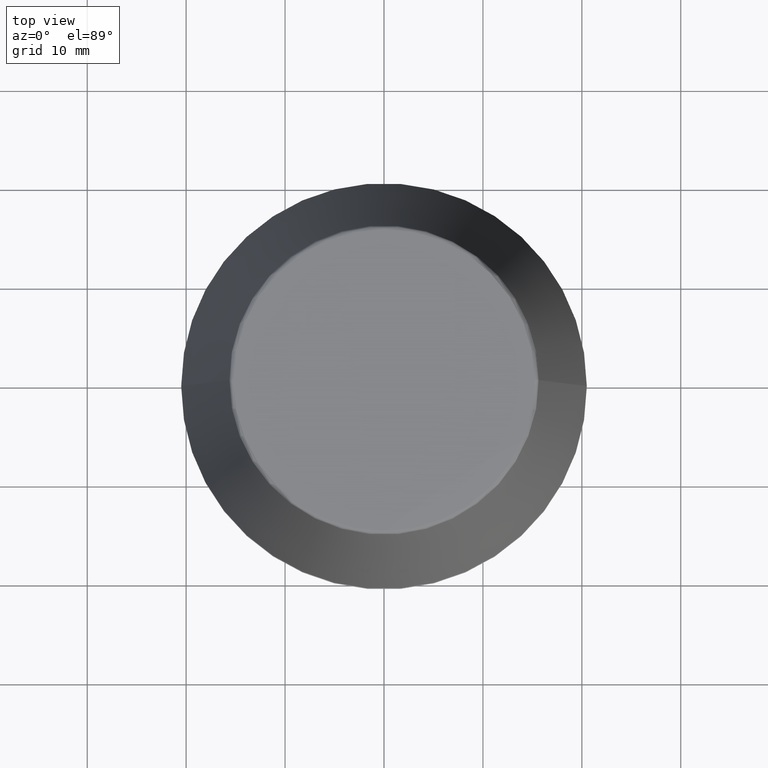
[diagram: clean part render]
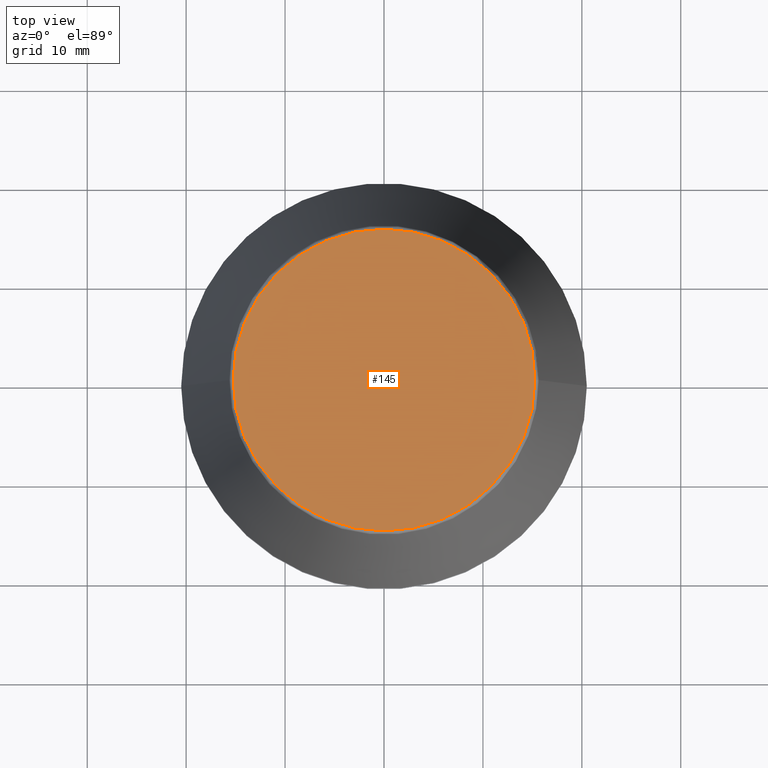
[diagram: same view with one face highlighted and labeled with its STEP entity id]
A machine part, top view. The second image highlights one B-rep face of the part: STEP entity #145.
In plain terms, the highlighted planar face has unit normal (0, 0, -1).
Its self-contained STEP definition (entity closure, byte-faithful):
#10 = EDGE_LOOP ( 'NONE', ( #68, #366 ) ) ;
#29 = AXIS2_PLACEMENT_3D ( 'NONE', #108, #338, #328 ) ;
#48 = DIRECTION ( 'NONE',  ( 0.0000000000000000000, 0.0000000000000000000, -1.000000000000000000 ) ) ;
#68 = ORIENTED_EDGE ( 'NONE', *, *, #75, .T. ) ;
#75 = EDGE_CURVE ( 'NONE', #370, #358, #372, .T. ) ;
#108 = CARTESIAN_POINT ( 'NONE',  ( 0.0000000000000000000, 0.0000000000000000000, 46.00000000000000000 ) ) ;
#144 = DIRECTION ( 'NONE',  ( 1.000000000000000000, 0.0000000000000000000, 0.0000000000000000000 ) ) ;
#145 = ADVANCED_FACE ( 'NONE', ( #354 ), #322, .F. ) ;
#170 = CARTESIAN_POINT ( 'NONE',  ( 0.0000000000000000000, 0.0000000000000000000, 46.00000000000000000 ) ) ;
#175 = CARTESIAN_POINT ( 'NONE',  ( 0.0000000000000000000, 15.24773554530077600, 46.00000000000000000 ) ) ;
#181 = AXIS2_PLACEMENT_3D ( 'NONE', #170, #371, #144 ) ;
#190 = CARTESIAN_POINT ( 'NONE',  ( 15.24773554530077600, 0.0000000000000000000, 46.00000000000000000 ) ) ;
#260 = EDGE_CURVE ( 'NONE', #358, #370, #309, .T. ) ;
#284 = CARTESIAN_POINT ( 'NONE',  ( -15.24773554530077600, 1.891563625393435400E-015, 46.00000000000000000 ) ) ;
#286 = DIRECTION ( 'NONE',  ( -1.000000000000000000, 0.0000000000000000000, -0.0000000000000000000 ) ) ;
#309 = CIRCLE ( 'NONE', #181, 15.24773554530077600 ) ;
#322 = PLANE ( 'NONE',  #380 ) ;
#328 = DIRECTION ( 'NONE',  ( 1.000000000000000000, 0.0000000000000000000, 0.0000000000000000000 ) ) ;
#338 = DIRECTION ( 'NONE',  ( -0.0000000000000000000, -0.0000000000000000000, 1.000000000000000000 ) ) ;
#354 = FACE_OUTER_BOUND ( 'NONE', #10, .T. ) ;
#358 = VERTEX_POINT ( 'NONE', #284 ) ;
#366 = ORIENTED_EDGE ( 'NONE', *, *, #260, .T. ) ;
#370 = VERTEX_POINT ( 'NONE', #190 ) ;
#371 = DIRECTION ( 'NONE',  ( -0.0000000000000000000, -0.0000000000000000000, 1.000000000000000000 ) ) ;
#372 = CIRCLE ( 'NONE', #29, 15.24773554530077600 ) ;
#380 = AXIS2_PLACEMENT_3D ( 'NONE', #175, #48, #286 ) ;